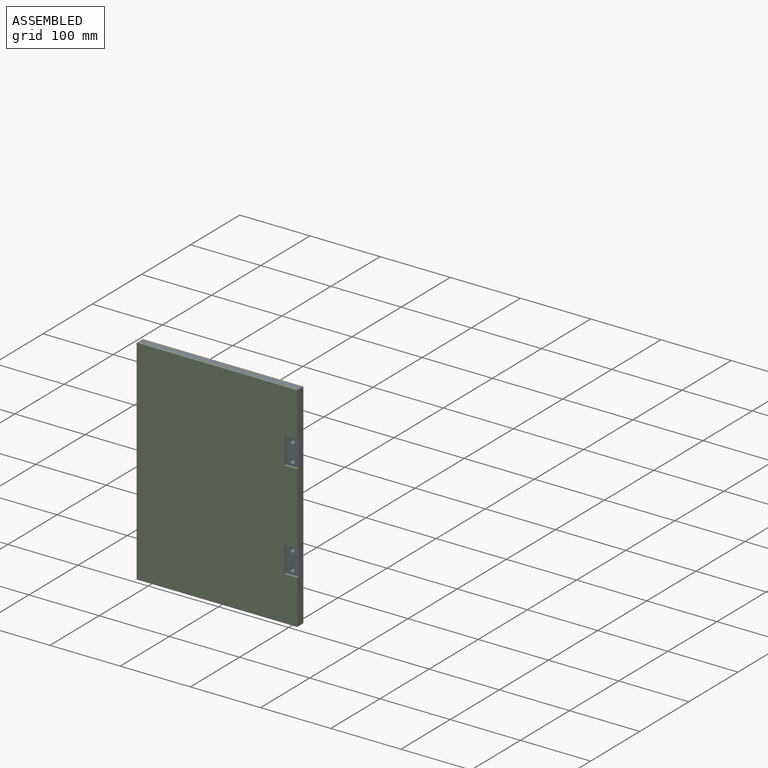
[diagram: assembled view]
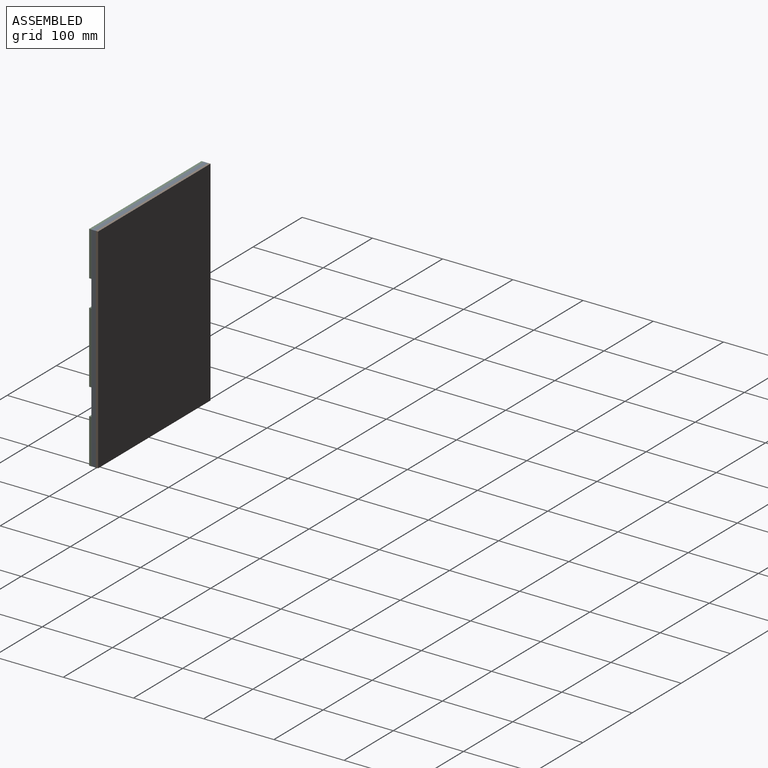
[diagram: assembled view, second angle]
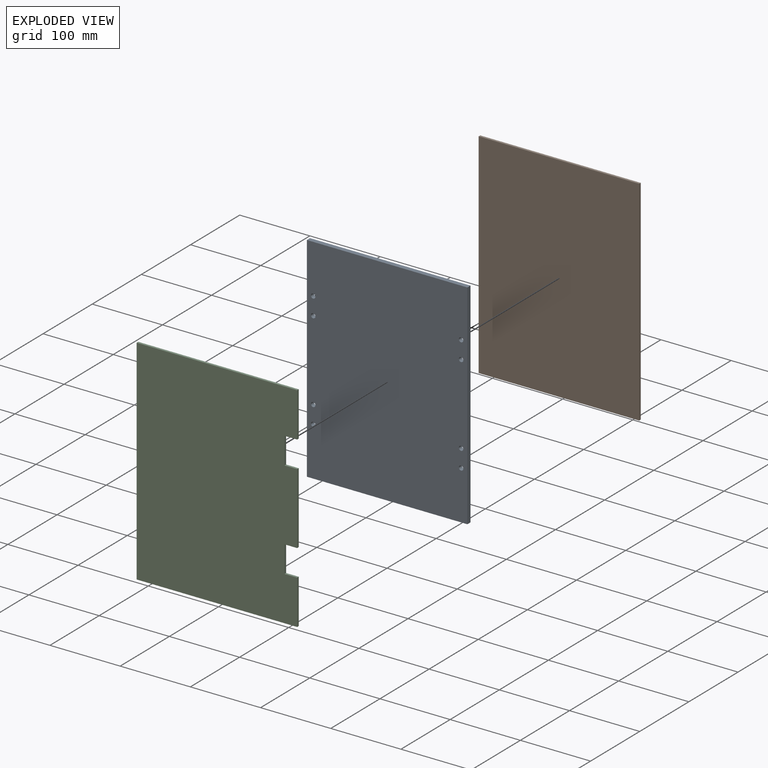
[diagram: exploded view]
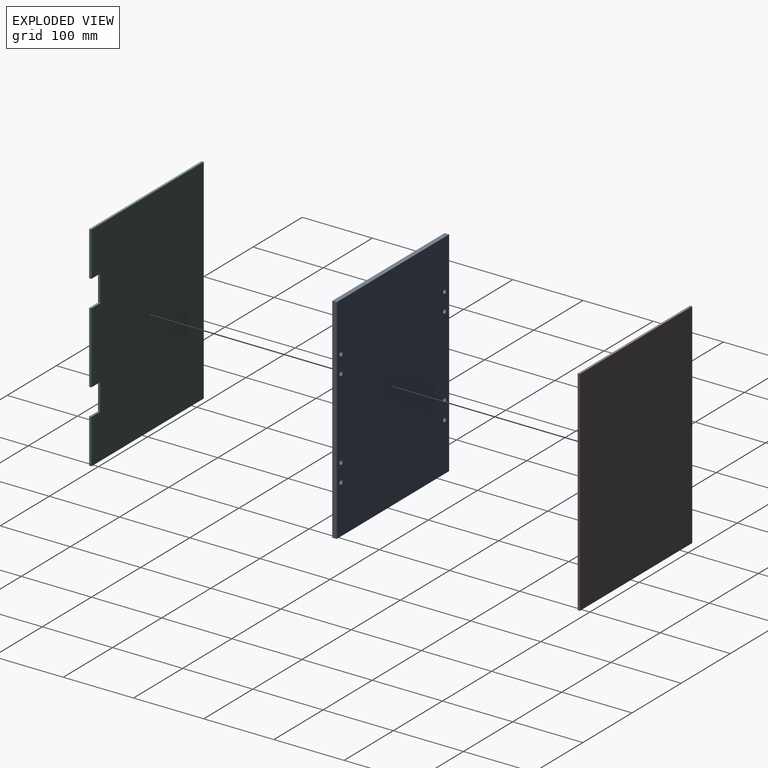
[diagram: exploded view, second angle]
ASSEMBLY  parts=3 mates=2
PART A: 14 faces, bbox 228.6x6.4x304.8 mm
  f0: plane 228.6x6.35mm, normal (0,0,-1), area 1451.6mm2, adj f1,f3,f4,f5
  f1: plane 304.8x6.35mm, normal (1,0,0), area 1935.5mm2, adj f0,f2,f4,f5
  f2: plane 228.6x6.35mm, normal (0,0,1), area 1451.6mm2, adj f1,f3,f4,f5
  f3: plane 304.8x6.35mm, normal (-1,0,0), area 1935.5mm2, adj f0,f2,f4,f5
  f4: plane 304.8x228.6mm, normal (0,-1,0), area 69423.9mm2, adj f0,f1,f2,f3,f6,f7,f8,f9
  f5: plane 304.8x228.6mm, normal (0,1,0), area 69423.9mm2, adj f0,f1,f2,f3,f6,f7,f8,f9
  f6: cylinder r=3.17mm len=6.35mm, axis (0,-1,0), area 126.7mm2, adj f4,f5
  f7: cylinder r=3.17mm len=6.35mm, axis (0,-1,0), area 126.7mm2, adj f4,f5
  f8: cylinder r=3.17mm len=6.35mm, axis (0,-1,0), area 126.7mm2, adj f4,f5
  f9: cylinder r=3.17mm len=6.35mm, axis (0,-1,0), area 126.7mm2, adj f4,f5
  f10: cylinder r=3.17mm len=6.35mm, axis (0,-1,0), area 126.7mm2, adj f4,f5
  f11: cylinder r=3.17mm len=6.35mm, axis (0,-1,0), area 126.7mm2, adj f4,f5
  f12: cylinder r=3.17mm len=6.35mm, axis (0,-1,0), area 126.7mm2, adj f4,f5
  f13: cylinder r=3.17mm len=6.35mm, axis (0,-1,0), area 126.7mm2, adj f4,f5
PART B: 6 faces, bbox 228.6x3.2x304.8 mm
  f0: plane 304.8x228.6mm, normal (0,-1,0), area 69677.3mm2, adj f2,f3,f4,f5
  f1: plane 304.8x228.6mm, normal (0,1,0), area 69677.3mm2, adj f2,f3,f4,f5
  f2: plane 228.6x3.18mm, normal (0,0,-1), area 725.8mm2, adj f0,f1,f3,f5
  f3: plane 304.8x3.18mm, normal (1,0,0), area 967.7mm2, adj f0,f1,f2,f4
  f4: plane 228.6x3.18mm, normal (0,0,1), area 725.8mm2, adj f0,f1,f3,f5
  f5: plane 304.8x3.18mm, normal (-1,0,0), area 967.7mm2, adj f0,f1,f2,f4
PART C: 14 faces, bbox 228.6x3.2x304.8 mm
  f0: plane 101.6x3.18mm, normal (1,0,0), area 322.6mm2, adj f1,f3,f10,f12
  f1: plane 304.8x228.6mm, normal (0,-1,0), area 68308.9mm2, adj f0,f2,f4,f5,f6,f7,f8,f9
  f2: plane 63.5x3.18mm, normal (1,0,0), area 201.6mm2, adj f1,f3,f6,f8
  f3: plane 304.8x228.6mm, normal (0,1,0), area 68308.9mm2, adj f0,f2,f4,f5,f6,f7,f8,f9
  f4: plane 228.6x3.18mm, normal (0,0,-1), area 725.8mm2, adj f1,f3,f5,f7
  f5: plane 63.5x3.18mm, normal (1,0,0), area 201.6mm2, adj f1,f3,f4,f11
  f6: plane 228.6x3.18mm, normal (0,0,1), area 725.8mm2, adj f1,f2,f3,f7
  f7: plane 304.8x3.18mm, normal (-1,0,0), area 967.7mm2, adj f1,f3,f4,f6
  f8: plane 17.96x3.18mm, normal (0,0,-1), area 57mm2, adj f1,f2,f3,f9
  f9: plane 38.1x3.18mm, normal (1,0,0), area 121mm2, adj f1,f3,f8,f10
  f10: plane 17.96x3.18mm, normal (0,0,1), area 57mm2, adj f0,f1,f3,f9
  f11: plane 17.96x3.18mm, normal (0,0,1), area 57mm2, adj f1,f3,f5,f13
  f12: plane 17.96x3.18mm, normal (0,0,-1), area 57mm2, adj f0,f1,f3,f13
  f13: plane 38.1x3.18mm, normal (1,0,0), area 121mm2, adj f1,f3,f11,f12
PLACE A t=(0,6.35,0)mm fixed
PLACE B t=(0,9.53,0)mm
PLACE C at identity
MATE fastened C.f3 <-> A.f4  axis (0,1,0) through (-114.3,0,0)mm
MATE fastened B.f0 <-> A.f5  axis (0,-1,0) through (-114.3,6.35,0)mm
